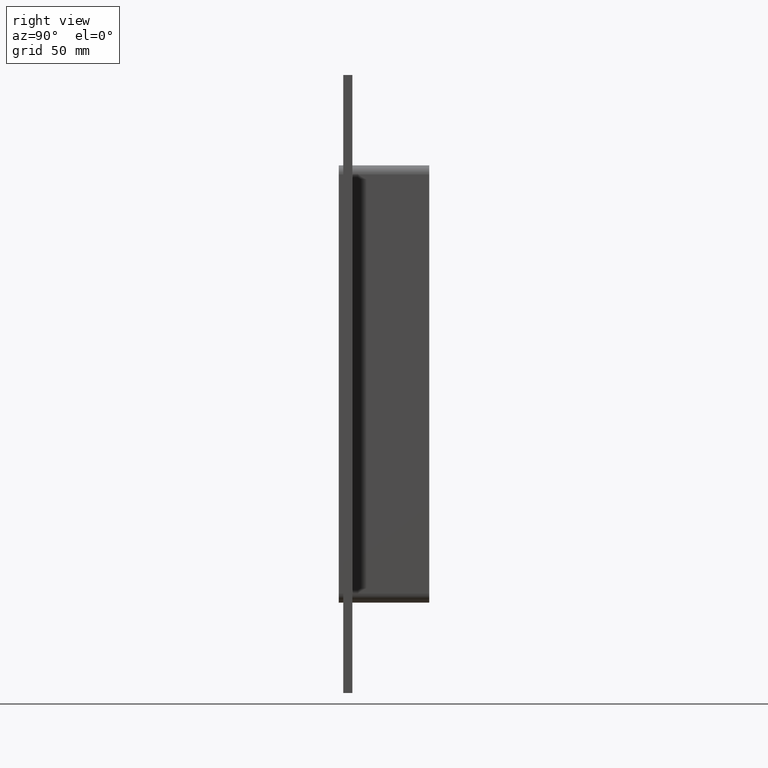
[diagram: clean part render]
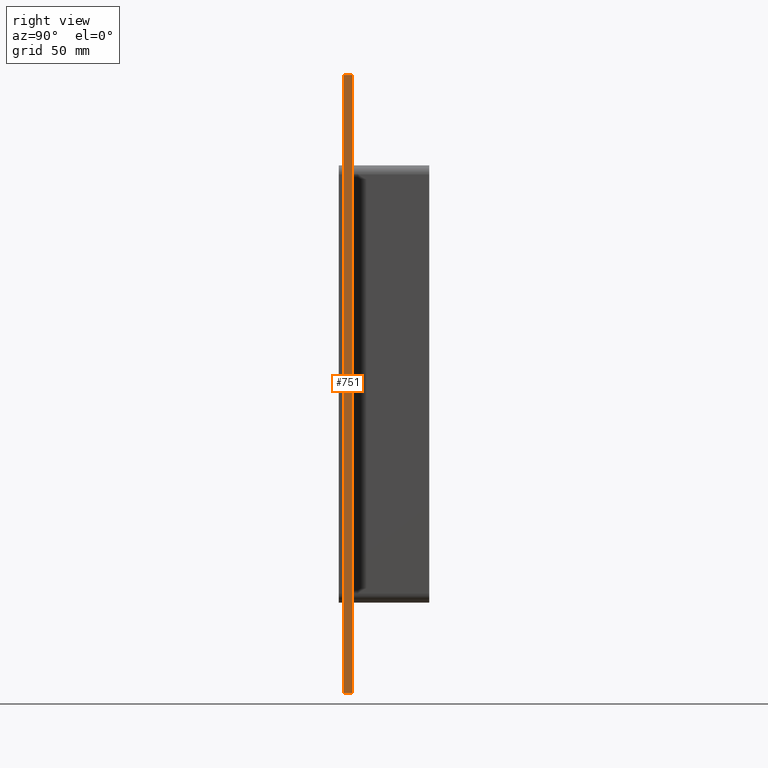
[diagram: same view with one face highlighted and labeled with its STEP entity id]
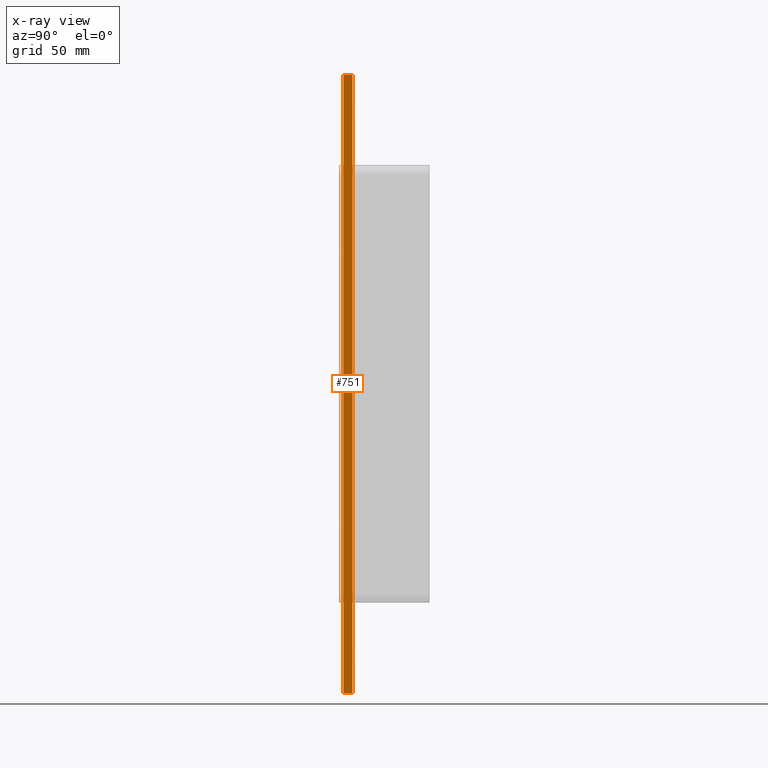
[diagram: x-ray of the same camera — body ghosted, the highlighted face saturated]
A machine part, right view. The second image highlights one B-rep face of the part: STEP entity #751.
The next image is the same camera in x-ray: the body ghosted, the highlighted face saturated — about 0% of this face is hidden behind the body in this view.
In plain terms, the highlighted planar face has unit normal (1, 0, 0).
Its self-contained STEP definition (entity closure, byte-faithful):
#411=CARTESIAN_POINT('',(126.24999999999997,6.000000000000001,205.0));
#412=VERTEX_POINT('',#411);
#419=CARTESIAN_POINT('',(126.24999999999997,6.000000000000001,-205.0));
#420=VERTEX_POINT('',#419);
#421=CARTESIAN_POINT('',(126.24999999999999,6.000000000000001,205.0));
#422=DIRECTION('',(0.0,0.0,-1.0));
#423=VECTOR('',#422,410.0);
#424=LINE('',#421,#423);
#425=EDGE_CURVE('',#412,#420,#424,.T.);
#557=CARTESIAN_POINT('',(126.24999999999999,0.0,205.0));
#558=VERTEX_POINT('',#557);
#573=CARTESIAN_POINT('',(126.24999999999999,0.0,-205.0));
#574=VERTEX_POINT('',#573);
#581=CARTESIAN_POINT('',(126.24999999999999,0.0,205.0));
#582=DIRECTION('',(0.0,0.0,-1.0));
#583=VECTOR('',#582,410.0);
#584=LINE('',#581,#583);
#585=EDGE_CURVE('',#558,#574,#584,.T.);
#726=CARTESIAN_POINT('',(126.24999999999999,0.0,-205.0));
#727=DIRECTION('',(0.0,1.0,0.0));
#728=VECTOR('',#727,6.000000000000001);
#729=LINE('',#726,#728);
#730=EDGE_CURVE('',#574,#420,#729,.T.);
#735=CARTESIAN_POINT('',(126.24999999999999,0.0,205.0));
#736=DIRECTION('',(1.0,0.0,0.0));
#737=DIRECTION('',(0.0,0.0,-1.0));
#738=AXIS2_PLACEMENT_3D('',#735,#736,#737);
#739=PLANE('',#738);
#740=ORIENTED_EDGE('',*,*,#585,.T.);
#741=ORIENTED_EDGE('',*,*,#730,.T.);
#742=ORIENTED_EDGE('',*,*,#425,.F.);
#743=CARTESIAN_POINT('',(126.24999999999999,0.0,205.0));
#744=DIRECTION('',(0.0,1.0,0.0));
#745=VECTOR('',#744,6.000000000000001);
#746=LINE('',#743,#745);
#747=EDGE_CURVE('',#558,#412,#746,.T.);
#748=ORIENTED_EDGE('',*,*,#747,.F.);
#749=EDGE_LOOP('',(#740,#741,#742,#748));
#750=FACE_OUTER_BOUND('',#749,.T.);
#751=ADVANCED_FACE('',(#750),#739,.T.);